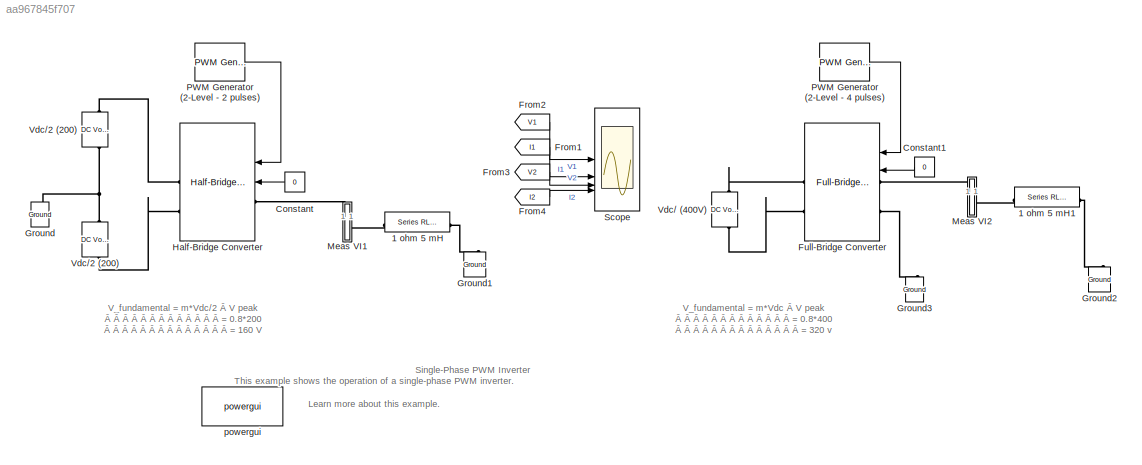
MODEL mdl_aa967845f707
KIND model
CONFIG AbsTol = auto
CONFIG EnableMultiTasking = on
CONFIG FixedStep = 5e-6
CONFIG InitFcn = Ts=5e-6;
CONFIG MaxStep = auto
CONFIG MinStep = auto
CONFIG PreLoadFcn = Ts=5e-6;
CONFIG RelTol = 1e-4
CONFIG SampleTimeConstraint = Unconstrained
CONFIG SolverName = FixedStepDiscrete
CONFIG StartTime = 0.0
CONFIG StopTime = 0.07
BLOCK [Reference] 1 ohm 5 mH  REF=spsSeriesRLCBranchLib/Series RLC Branch
  LibrarySourceBlock = sps_lib/Passives/Series RLC Branch
  NameLocation = top
  SourceBlock = spsSeriesRLCBranchLib/Series RLC Branch
  SourceType = Series RLC Branch
BLOCK [Reference] 1 ohm 5 mH1  REF=spsSeriesRLCBranchLib/Series RLC Branch
  LibrarySourceBlock = sps_lib/Passives/Series RLC Branch
  NameLocation = top
  SourceBlock = spsSeriesRLCBranchLib/Series RLC Branch
  SourceType = Series RLC Branch
BLOCK [Constant] Constant
  Value = 0
BLOCK [Constant] Constant1
  Value = 0
BLOCK [From] From1
  GotoTag = I1
  TagVisibility = global
BLOCK [From] From2
  GotoTag = V1
  TagVisibility = global
BLOCK [From] From3
  GotoTag = V2
  TagVisibility = global
BLOCK [From] From4
  GotoTag = I2
  TagVisibility = global
BLOCK [Reference] Full-Bridge Converter  REF=spsFullBridgeConverterLib/Full-Bridge Converter
  LibrarySourceBlock = sps_lib/Power Electronics/Full-Bridge Converter
  SourceBlock = spsFullBridgeConverterLib/Full-Bridge Converter
  SourceType = Full-Bridge Converter
BLOCK [Reference] Ground  REF=spsGroundLib/Ground
  LibrarySourceBlock = sps_lib/Utilities/Ground
  NameLocation = right
  SourceBlock = spsGroundLib/Ground
  SourceType = Ground
BLOCK [Reference] Ground1  REF=spsGroundLib/Ground
  LibrarySourceBlock = sps_lib/Utilities/Ground
  NameLocation = right
  SourceBlock = spsGroundLib/Ground
  SourceType = Ground
BLOCK [Reference] Ground2  REF=spsGroundLib/Ground
  LibrarySourceBlock = sps_lib/Utilities/Ground
  NameLocation = right
  SourceBlock = spsGroundLib/Ground
  SourceType = Ground
BLOCK [Reference] Ground3  REF=spsGroundLib/Ground
  LibrarySourceBlock = sps_lib/Utilities/Ground
  NameLocation = right
  SourceBlock = spsGroundLib/Ground
  SourceType = Ground
BLOCK [Reference] Half-Bridge Converter  REF=spsHalfBridgeConverterLib/Half-Bridge Converter
  LibrarySourceBlock = sps_lib/Power Electronics/Half-Bridge Converter
  SourceBlock = spsHalfBridgeConverterLib/Half-Bridge Converter
  SourceType = Half-Bridge Converter
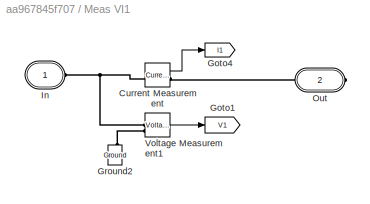
BLOCK [SubSystem] Meas VI1
BLOCK [Reference] Meas VI1/Current Measurement  REF=spsCurrentMeasurementLib/Current Measurement
  LibrarySourceBlock = sps_lib/Sensors and Measurements/Current Measurement
  SourceBlock = spsCurrentMeasurementLib/Current Measurement
  SourceType = Current Measurement
BLOCK [Goto] Meas VI1/Goto1
  GotoTag = V1
  TagVisibility = global
BLOCK [Goto] Meas VI1/Goto4
  GotoTag = I1
  TagVisibility = global
BLOCK [Reference] Meas VI1/Ground2  REF=spsGroundLib/Ground
  LibrarySourceBlock = sps_lib/Utilities/Ground
  NameLocation = right
  SourceBlock = spsGroundLib/Ground
  SourceType = Ground
BLOCK [PMIOPort] Meas VI1/In
  Side = Left
  Tag = PMCPort
BLOCK [PMIOPort] Meas VI1/Out
  Port = 2
  Side = Right
  Tag = PMCPort
BLOCK [Reference] Meas VI1/Voltage Measurement1  REF=spsVoltageMeasurementLib/Voltage Measurement
  AttributesFormatString = \n
  LibrarySourceBlock = sps_lib/Sensors and Measurements/Voltage Measurement
  SourceBlock = spsVoltageMeasurementLib/Voltage Measurement
  SourceType = Voltage Measurement
  Tag = PoWeRsYsTeMmEaSuReMeNt
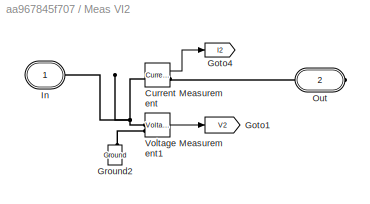
BLOCK [SubSystem] Meas VI2
BLOCK [Reference] Meas VI2/Current Measurement  REF=spsCurrentMeasurementLib/Current Measurement
  LibrarySourceBlock = sps_lib/Sensors and Measurements/Current Measurement
  SourceBlock = spsCurrentMeasurementLib/Current Measurement
  SourceType = Current Measurement
BLOCK [Goto] Meas VI2/Goto1
  GotoTag = V2
  TagVisibility = global
BLOCK [Goto] Meas VI2/Goto4
  GotoTag = I2
  TagVisibility = global
BLOCK [Reference] Meas VI2/Ground2  REF=spsGroundLib/Ground
  LibrarySourceBlock = sps_lib/Utilities/Ground
  NameLocation = right
  SourceBlock = spsGroundLib/Ground
  SourceType = Ground
BLOCK [PMIOPort] Meas VI2/In
  Side = Left
  Tag = PMCPort
BLOCK [PMIOPort] Meas VI2/Out
  Port = 2
  Side = Right
  Tag = PMCPort
BLOCK [Reference] Meas VI2/Voltage Measurement1  REF=spsVoltageMeasurementLib/Voltage Measurement
  AttributesFormatString = \n
  LibrarySourceBlock = sps_lib/Sensors and Measurements/Voltage Measurement
  SourceBlock = spsVoltageMeasurementLib/Voltage Measurement
  SourceType = Voltage Measurement
  Tag = PoWeRsYsTeMmEaSuReMeNt
BLOCK [Reference] PWM Generator (2-Level - 2 pulses)  REF=spsPWMGenerator2LevelLib/PWM Generator
(2-Level)
  LibrarySourceBlock = sps_lib/Power Electronics/Power Electronics Control/PWM Generator\n(2-Level)
  NameLocation = top
  SourceBlock = spsPWMGenerator2LevelLib/PWM Generator\n(2-Level)
  SourceType = PWM Generator (2-Level)
BLOCK [Reference] PWM Generator (2-Level - 4 pulses)  REF=spsPWMGenerator2LevelLib/PWM Generator
(2-Level)
  LibrarySourceBlock = sps_lib/Power Electronics/Power Electronics Control/PWM Generator\n(2-Level)
  NameLocation = top
  SourceBlock = spsPWMGenerator2LevelLib/PWM Generator\n(2-Level)
  SourceType = PWM Generator (2-Level)
BLOCK [Scope] Scope
  Floating = off
  NumInputPorts = 4
  ScopeSpecificationString = Simulink.scopes.TimeScopeBlockCfg('CurrentConfiguration', extmgr.ConfigurationSet(extmgr.Configuration('Core','General UI',true),extmgr.Configuration('Core','Source UI',true),extmgr.Configuration('Sources','WiredSimulink',true,'DataLoggingVariableName','ScopeDataForFFT','DataLogging',true,'DataLoggingDecimateData',true,'DataLoggingDecimation','1','DataLoggingSaveFormat','StructureWithTime'),extmgr...<+3537ch>
BLOCK [Reference] Vdc// (400V)  REF=spsDCVoltageSourceLib/DC Voltage Source
  LibrarySourceBlock = sps_lib/Sources/DC Voltage Source
  NameLocation = left
  SourceBlock = spsDCVoltageSourceLib/DC Voltage Source
  SourceType = DC Voltage Source
BLOCK [Reference] Vdc//2 (200)  REF=spsDCVoltageSourceLib/DC Voltage Source
  LibrarySourceBlock = sps_lib/Sources/DC Voltage Source
  NameLocation = left
  SourceBlock = spsDCVoltageSourceLib/DC Voltage Source
  SourceType = DC Voltage Source
BLOCK [Reference] Vdc//2 (200)   REF=spsDCVoltageSourceLib/DC Voltage Source
  LibrarySourceBlock = sps_lib/Sources/DC Voltage Source
  NameLocation = left
  SourceBlock = spsDCVoltageSourceLib/DC Voltage Source
  SourceType = DC Voltage Source
BLOCK [Reference] powergui  REF=spspowerguiLib/powergui
  LibrarySourceBlock = sps_lib/powergui
  Priority = 1
  SourceBlock = spspowerguiLib/powergui
  SourceType = PSB option menu block
ANNOTATION (root): V_fundamental = m*Vdc Â V peak Â Â Â Â Â Â Â Â Â Â Â Â Â = 0.8*400 Â Â Â Â Â Â Â Â Â Â Â Â Â Â = 320 v
ANNOTATION (root): V_fundamental = m*Vdc/2 Â V peak Â Â Â Â Â Â Â Â Â Â Â Â Â = 0.8*200 Â Â Â Â Â Â Â Â Â Â Â Â Â Â = 160 V
ANNOTATION (root): This example shows the operation of a single-phase PWM inverter. Learn more about this example.
ANNOTATION (root): Single-Phase PWM Inverter
LINE Constant1:1 -> Full-Bridge Converter:2
LINE Constant:1 -> Half-Bridge Converter:2
LINE From1:1 -> Scope:2
LINE From2:1 -> Scope:1
LINE From3:1 -> Scope:3
LINE From4:1 -> Scope:4
LINE Meas VI1/Current Measurement:1 -> Meas VI1/Goto4:1
LINE Meas VI1/Voltage Measurement1:1 -> Meas VI1/Goto1:1
LINE Meas VI2/Current Measurement:1 -> Meas VI2/Goto4:1
LINE Meas VI2/Voltage Measurement1:1 -> Meas VI2/Goto1:1
LINE PWM Generator (2-Level - 2 pulses):1 -> Half-Bridge Converter:1
LINE PWM Generator (2-Level - 4 pulses):1 -> Full-Bridge Converter:1
PLINE 1 ohm 5 mH1:LConn1 -- Meas VI2:RConn1
PLINE 1 ohm 5 mH1:RConn1 -- Ground2:LConn1
PLINE 1 ohm 5 mH:LConn1 -- Meas VI1:RConn1
PLINE 1 ohm 5 mH:RConn1 -- Ground1:LConn1
PLINE Full-Bridge Converter:LConn1 -- Meas VI2:LConn1
PLINE Full-Bridge Converter:LConn2 -- Ground3:LConn1
PLINE Full-Bridge Converter:RConn1 -- Vdc// (400V):RConn1
PLINE Full-Bridge Converter:RConn2 -- Vdc// (400V):LConn1
PNET net1: Ground:LConn1 -- Vdc//2 (200) :LConn1 -- Vdc//2 (200):RConn1
PLINE Half-Bridge Converter:LConn1 -- Meas VI1:LConn1
PLINE Half-Bridge Converter:RConn1 -- Vdc//2 (200) :RConn1
PLINE Half-Bridge Converter:RConn2 -- Vdc//2 (200):LConn1
PNET net2: Meas VI1/Current Measurement:LConn1 -- Meas VI1/In:RConn1 -- Meas VI1/Voltage Measurement1:LConn1
PLINE Meas VI1/Current Measurement:RConn1 -- Meas VI1/Out:RConn1
PLINE Meas VI1/Ground2:LConn1 -- Meas VI1/Voltage Measurement1:LConn2
PNET net3: Meas VI2/Current Measurement:LConn1 -- Meas VI2/In:RConn1 -- Meas VI2/Voltage Measurement1:LConn1
PLINE Meas VI2/Current Measurement:RConn1 -- Meas VI2/Out:RConn1
PLINE Meas VI2/Ground2:LConn1 -- Meas VI2/Voltage Measurement1:LConn2
note: PNET lines group multi-terminal physical nets as a canonical sorted terminal list (undirected conserving connections); 2-terminal nets keep the pairwise PLINE form
